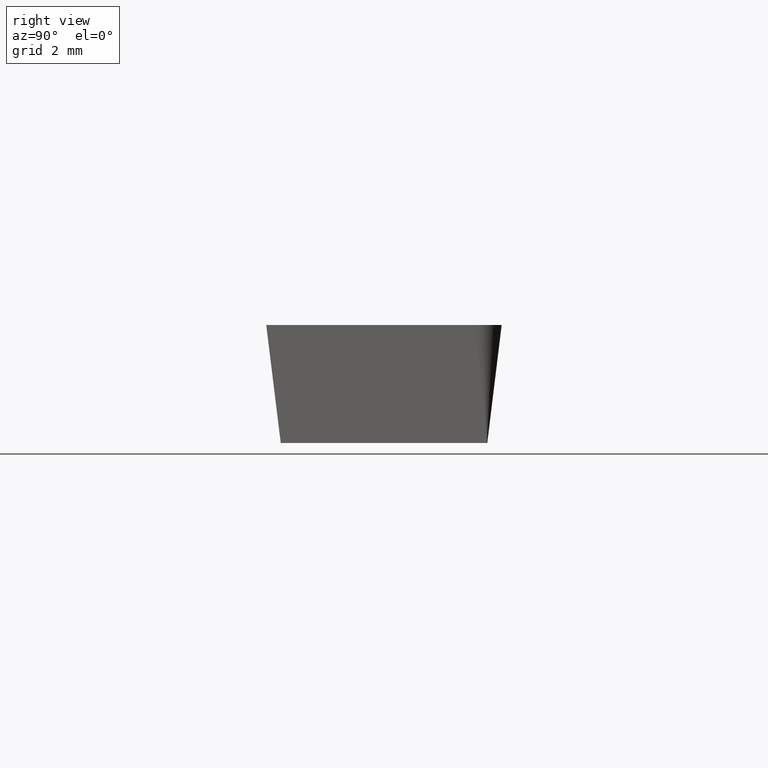
[diagram: clean part render]
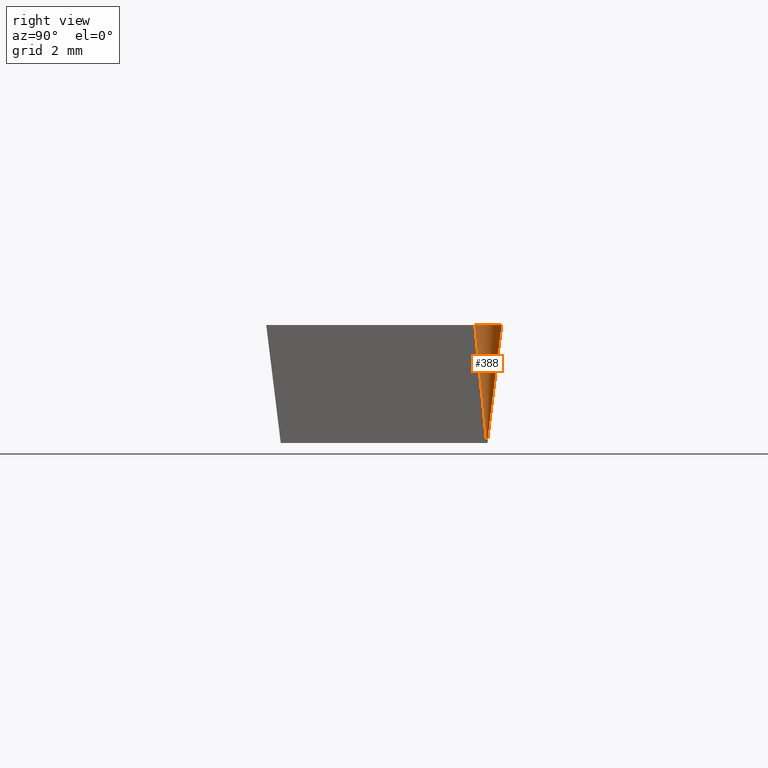
[diagram: same view with one face highlighted and labeled with its STEP entity id]
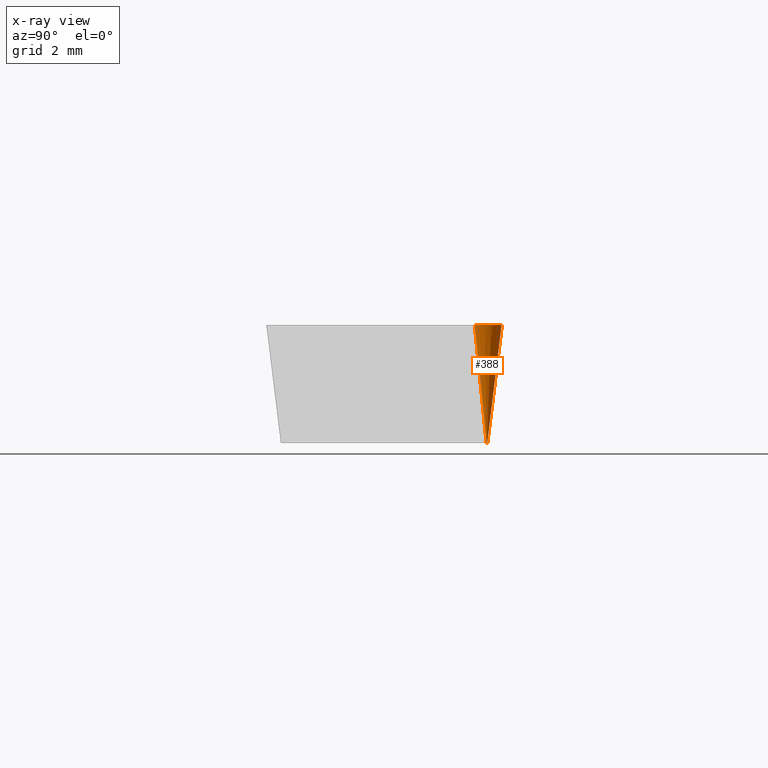
[diagram: x-ray of the same camera — body ghosted, the highlighted face saturated]
A machine part, right view. The second image highlights one B-rep face of the part: STEP entity #388.
The next image is the same camera in x-ray: the body ghosted, the highlighted face saturated — about 0% of this face is hidden behind the body in this view.
In plain terms, the highlighted conical surface has half-angle 7 deg.
Its self-contained STEP definition (entity closure, byte-faithful):
#30 = CARTESIAN_POINT ( 'NONE',  ( 8.801175576557993100, 3.175000000000002000, 0.0000000000000000000 ) ) ;
#32 = VERTEX_POINT ( 'NONE', #30 ) ;
#49 = DIRECTION ( 'NONE',  ( -0.0000000000000000000, -0.0000000000000000000, 1.000000000000000000 ) ) ;
#52 = DIRECTION ( 'NONE',  ( 0.0000000000000000000, 0.0000000000000000000, -1.000000000000000000 ) ) ;
#53 = CARTESIAN_POINT ( 'NONE',  ( 8.801175576557994900, 2.775000000000001700, -3.180000000000000200 ) ) ;
#59 = DIRECTION ( 'NONE',  ( -1.000000000000000000, 0.0000000000000000000, 0.0000000000000000000 ) ) ;
#70 = DIRECTION ( 'NONE',  ( 2.864399321849623000E-017, -0.1218693434051477400, -0.9925461516413219800 ) ) ;
#104 = CARTESIAN_POINT ( 'NONE',  ( 8.806650418894873800, 2.767181114829359700, -3.180000000000000200 ) ) ;
#124 = ORIENTED_EDGE ( 'NONE', *, *, #461, .F. ) ;
#125 = ORIENTED_EDGE ( 'NONE', *, *, #301, .F. ) ;
#128 = ORIENTED_EDGE ( 'NONE', *, *, #415, .F. ) ;
#133 = AXIS2_PLACEMENT_3D ( 'NONE', #223, #188, #187 ) ;
#135 = VERTEX_POINT ( 'NONE', #203 ) ;
#137 = ORIENTED_EDGE ( 'NONE', *, *, #375, .F. ) ;
#146 = DIRECTION ( 'NONE',  ( -1.000000000000000000, 0.0000000000000000000, 0.0000000000000000000 ) ) ;
#153 = VERTEX_POINT ( 'NONE', #398 ) ;
#168 = AXIS2_PLACEMENT_3D ( 'NONE', #231, #49, #146 ) ;
#187 = DIRECTION ( 'NONE',  ( -1.000000000000000000, 0.0000000000000000000, 0.0000000000000000000 ) ) ;
#188 = DIRECTION ( 'NONE',  ( -0.0000000000000000000, -0.0000000000000000000, 1.000000000000000000 ) ) ;
#203 = CARTESIAN_POINT ( 'NONE',  ( 9.030606151098410800, 2.447339182284403500, 0.0000000000000000000 ) ) ;
#206 = VERTEX_POINT ( 'NONE', #104 ) ;
#210 = EDGE_LOOP ( 'NONE', ( #124, #125, #128, #137 ) ) ;
#221 = AXIS2_PLACEMENT_3D ( 'NONE', #53, #52, #59 ) ;
#223 = CARTESIAN_POINT ( 'NONE',  ( 8.801175576557994900, 2.775000000000001700, 0.0000000000000000000 ) ) ;
#231 = CARTESIAN_POINT ( 'NONE',  ( 8.801175576557994900, 2.775000000000001700, 0.0000000000000000000 ) ) ;
#234 = VECTOR ( 'NONE', #70, 1000.000000000000000 ) ;
#283 = CARTESIAN_POINT ( 'NONE',  ( 9.030606151098410800, 2.447339182284403100, 0.0000000000000000000 ) ) ;
#301 = EDGE_CURVE ( 'NONE', #32, #153, #317, .T. ) ;
#317 = LINE ( 'NONE', #331, #234 ) ;
#331 = CARTESIAN_POINT ( 'NONE',  ( 8.801175576557993100, 3.175000000000002000, 0.0000000000000000000 ) ) ;
#344 = DIRECTION ( 'NONE',  ( 0.06990138369076601100, -0.09982952178648428500, 0.9925461516413219800 ) ) ;
#365 = CIRCLE ( 'NONE', #221, 0.009545096328762367500 ) ;
#375 = EDGE_CURVE ( 'NONE', #206, #135, #459, .T. ) ;
#388 = ADVANCED_FACE ( 'NONE', ( #466 ), #440, .T. ) ;
#398 = CARTESIAN_POINT ( 'NONE',  ( 8.801175576557993100, 2.784545096328764600, -3.180000000000000200 ) ) ;
#415 = EDGE_CURVE ( 'NONE', #135, #32, #465, .T. ) ;
#440 = CONICAL_SURFACE ( 'NONE', #168, 0.3999999999999993000, 0.1221730476396033400 ) ;
#457 = VECTOR ( 'NONE', #344, 1000.000000000000000 ) ;
#459 = LINE ( 'NONE', #283, #457 ) ;
#461 = EDGE_CURVE ( 'NONE', #153, #206, #365, .T. ) ;
#465 = CIRCLE ( 'NONE', #133, 0.3999999999999993000 ) ;
#466 = FACE_OUTER_BOUND ( 'NONE', #210, .T. ) ;